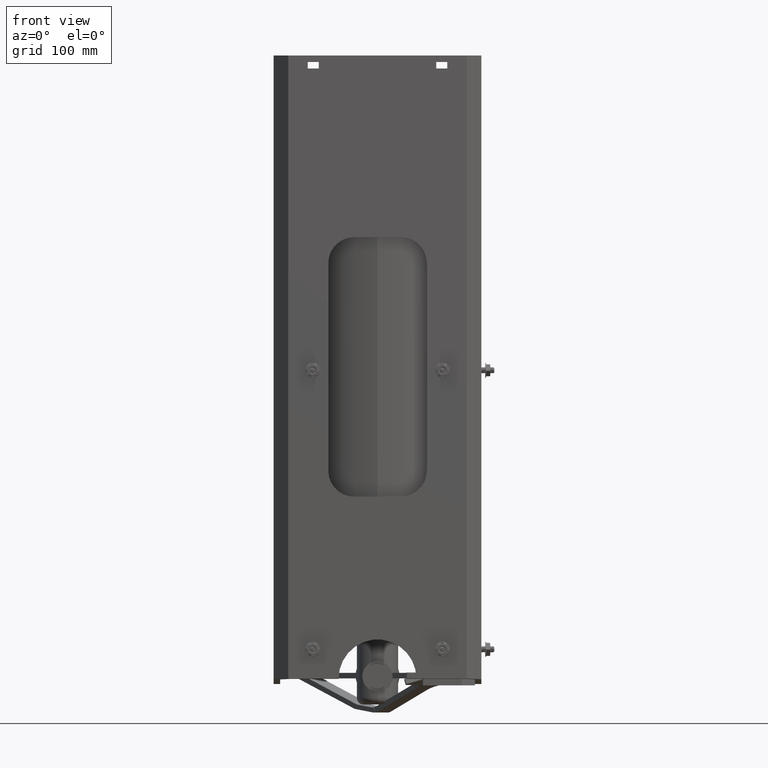
[diagram: clean part render]
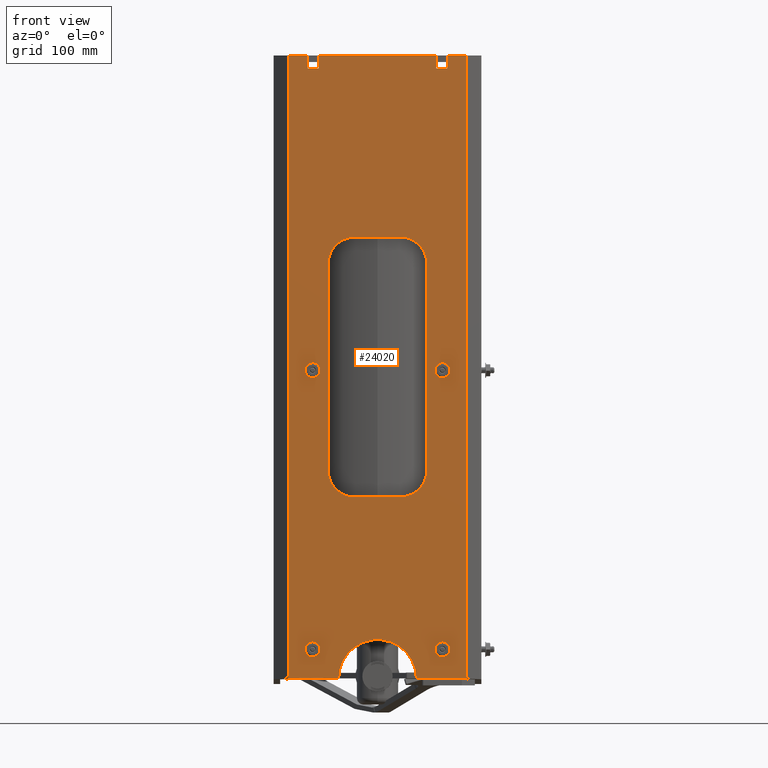
[diagram: same view with one face highlighted and labeled with its STEP entity id]
A machine part, front view. The second image highlights one B-rep face of the part: STEP entity #24020.
In plain terms, the highlighted planar face has unit normal (0, 1, 0).
Its self-contained STEP definition (entity closure, byte-faithful):
#192 = EDGE_CURVE ( 'NONE', #22848, #25808, #3116, .T. ) ;
#288 = VERTEX_POINT ( 'NONE', #25339 ) ;
#301 = CARTESIAN_POINT ( 'NONE',  ( -4.000000000000010700, -4.000000000000010700, 12.10500000000000000 ) ) ;
#709 = VERTEX_POINT ( 'NONE', #24168 ) ;
#737 = DIRECTION ( 'NONE',  ( 0.0000000000000000000, 0.0000000000000000000, -1.000000000000000000 ) ) ;
#744 = CARTESIAN_POINT ( 'NONE',  ( -5.736880786694953000E-015, -4.000000000000008900, -11.89500000000000000 ) ) ;
#758 = ORIENTED_EDGE ( 'NONE', *, *, #30178, .F. ) ;
#777 = CARTESIAN_POINT ( 'NONE',  ( -2.500000000000004900, -4.000000000000008900, -10.77000000000000100 ) ) ;
#781 = ORIENTED_EDGE ( 'NONE', *, *, #2026, .F. ) ;
#1023 = DIRECTION ( 'NONE',  ( -4.440892098500599000E-016, -1.000000000000000000, 0.0000000000000000000 ) ) ;
#1154 = VERTEX_POINT ( 'NONE', #4987 ) ;
#1570 = ORIENTED_EDGE ( 'NONE', *, *, #27045, .F. ) ;
#1656 = VERTEX_POINT ( 'NONE', #21421 ) ;
#1784 = CARTESIAN_POINT ( 'NONE',  ( -0.8950000000000045700, -4.000000000000008900, -4.894999999999997800 ) ) ;
#1910 = CIRCLE ( 'NONE', #12161, 1.000000000000000200 ) ;
#1981 = CIRCLE ( 'NONE', #8690, 0.1329999999999999200 ) ;
#2026 = EDGE_CURVE ( 'NONE', #4314, #16028, #1910, .T. ) ;
#2082 = CARTESIAN_POINT ( 'NONE',  ( -3.437500000000008400, -4.000000000000010700, 12.10500000000000000 ) ) ;
#2086 = ORIENTED_EDGE ( 'NONE', *, *, #17422, .F. ) ;
#2115 = LINE ( 'NONE', #18387, #14041 ) ;
#2358 = DIRECTION ( 'NONE',  ( -4.440892098500599000E-016, -1.000000000000000000, 0.0000000000000000000 ) ) ;
#2472 = VECTOR ( 'NONE', #14699, 39.37007874015748100 ) ;
#2574 = CARTESIAN_POINT ( 'NONE',  ( -0.8950000000000050100, -4.000000000000008900, -4.894999999999997800 ) ) ;
#2758 = DIRECTION ( 'NONE',  ( 5.463695987328539300E-016, 2.426368433873675200E-031, 1.000000000000000000 ) ) ;
#2782 = EDGE_LOOP ( 'NONE', ( #30515, #29788, #21597, #18230, #16774, #781, #28867, #2086 ) ) ;
#3009 = FACE_BOUND ( 'NONE', #2782, .T. ) ;
#3116 = CIRCLE ( 'NONE', #28569, 0.1329999999999997300 ) ;
#3169 = DIRECTION ( 'NONE',  ( 0.0000000000000000000, 0.0000000000000000000, -1.000000000000000000 ) ) ;
#3196 = DIRECTION ( 'NONE',  ( 0.0000000000000000000, 0.0000000000000000000, -1.000000000000000000 ) ) ;
#3221 = CARTESIAN_POINT ( 'NONE',  ( 2.687500000000002200, -4.000000000000008900, 12.10500000000000000 ) ) ;
#3505 = CIRCLE ( 'NONE', #16261, 0.1329999999999997000 ) ;
#3661 = VERTEX_POINT ( 'NONE', #8545 ) ;
#3705 = DIRECTION ( 'NONE',  ( -4.440892098500599000E-016, -1.000000000000000000, 0.0000000000000000000 ) ) ;
#3751 = FACE_BOUND ( 'NONE', #12607, .T. ) ;
#3764 = PLANE ( 'NONE',  #28555 ) ;
#3995 = DIRECTION ( 'NONE',  ( 1.000000000000000000, 4.440892098500596600E-016, 0.0000000000000000000 ) ) ;
#4235 = VERTEX_POINT ( 'NONE', #8524 ) ;
#4260 = DIRECTION ( 'NONE',  ( 1.000000000000000000, 4.440892098500596600E-016, 0.0000000000000000000 ) ) ;
#4314 = VERTEX_POINT ( 'NONE', #28171 ) ;
#4356 = VERTEX_POINT ( 'NONE', #4470 ) ;
#4414 = AXIS2_PLACEMENT_3D ( 'NONE', #777, #17441, #3196 ) ;
#4470 = CARTESIAN_POINT ( 'NONE',  ( 1.499999999999996700, -4.000000000000006200, -11.89500000000000000 ) ) ;
#4519 = ORIENTED_EDGE ( 'NONE', *, *, #20016, .F. ) ;
#4562 = DIRECTION ( 'NONE',  ( 0.0000000000000000000, 0.0000000000000000000, -1.000000000000000000 ) ) ;
#4665 = DIRECTION ( 'NONE',  ( -4.440892098500599000E-016, -1.000000000000000000, 0.0000000000000000000 ) ) ;
#4753 = CARTESIAN_POINT ( 'NONE',  ( 2.500000000000004000, -4.000000000000008900, -0.02000000000000033300 ) ) ;
#4766 = VERTEX_POINT ( 'NONE', #3221 ) ;
#4776 = ORIENTED_EDGE ( 'NONE', *, *, #18943, .F. ) ;
#4782 = CIRCLE ( 'NONE', #29787, 0.1329999999999997000 ) ;
#4859 = EDGE_CURVE ( 'NONE', #16373, #11336, #29372, .T. ) ;
#4977 = ORIENTED_EDGE ( 'NONE', *, *, #21016, .F. ) ;
#4987 = CARTESIAN_POINT ( 'NONE',  ( -2.500000000000004900, -4.000000000000008900, -10.90300000000000000 ) ) ;
#5109 = CARTESIAN_POINT ( 'NONE',  ( -2.263500000000007200, -4.000000000000008900, 12.10500000000000000 ) ) ;
#5137 = VERTEX_POINT ( 'NONE', #1784 ) ;
#5221 = CARTESIAN_POINT ( 'NONE',  ( -2.500000000000004900, -4.000000000000008900, -0.02000000000000033300 ) ) ;
#5225 = FACE_BOUND ( 'NONE', #17134, .T. ) ;
#5873 = DIRECTION ( 'NONE',  ( 0.0000000000000000000, -0.0000000000000000000, 1.000000000000000000 ) ) ;
#5876 = VECTOR ( 'NONE', #13546, 39.37007874015748100 ) ;
#5883 = CARTESIAN_POINT ( 'NONE',  ( 0.8949999999999994600, -4.000000000000008900, 5.105000000000001300 ) ) ;
#5978 = LINE ( 'NONE', #11135, #17924 ) ;
#6044 = ORIENTED_EDGE ( 'NONE', *, *, #19617, .T. ) ;
#6497 = LINE ( 'NONE', #27972, #19209 ) ;
#6584 = AXIS2_PLACEMENT_3D ( 'NONE', #8979, #25692, #11363 ) ;
#6774 = EDGE_CURVE ( 'NONE', #288, #3661, #25176, .T. ) ;
#7264 = CARTESIAN_POINT ( 'NONE',  ( 1.895000000000002700, -4.000000000000008900, -3.894999999999990700 ) ) ;
#7361 = VERTEX_POINT ( 'NONE', #23248 ) ;
#7446 = VERTEX_POINT ( 'NONE', #2082 ) ;
#7629 = DIRECTION ( 'NONE',  ( 0.0000000000000000000, 0.0000000000000000000, -1.000000000000000000 ) ) ;
#7939 = ORIENTED_EDGE ( 'NONE', *, *, #21286, .F. ) ;
#7983 = EDGE_CURVE ( 'NONE', #25808, #22848, #14562, .T. ) ;
#8124 = DIRECTION ( 'NONE',  ( -4.440892098500599000E-016, -1.000000000000000000, 0.0000000000000000000 ) ) ;
#8175 = CARTESIAN_POINT ( 'NONE',  ( 2.687500000000002200, -4.000000000000008900, 12.10500000000000000 ) ) ;
#8189 = VECTOR ( 'NONE', #19540, 39.37007874015748100 ) ;
#8418 = VECTOR ( 'NONE', #3995, 39.37007874015748100 ) ;
#8516 = EDGE_CURVE ( 'NONE', #7446, #11460, #14526, .T. ) ;
#8524 = CARTESIAN_POINT ( 'NONE',  ( 3.437499999999997300, -4.000000000000008000, -11.89500000000000000 ) ) ;
#8529 = DIRECTION ( 'NONE',  ( 0.0000000000000000000, -0.0000000000000000000, 1.000000000000000000 ) ) ;
#8545 = CARTESIAN_POINT ( 'NONE',  ( 2.263500000000002700, -4.000000000000008900, 11.60500000000000000 ) ) ;
#8690 = AXIS2_PLACEMENT_3D ( 'NONE', #15290, #1023, #17698 ) ;
#8779 = CIRCLE ( 'NONE', #24077, 0.1329999999999999200 ) ;
#8784 = DIRECTION ( 'NONE',  ( 1.000000000000000000, 4.440892098500596600E-016, 0.0000000000000000000 ) ) ;
#8858 = DIRECTION ( 'NONE',  ( 0.0000000000000000000, -0.0000000000000000000, 1.000000000000000000 ) ) ;
#8979 = CARTESIAN_POINT ( 'NONE',  ( -0.8950000000000050100, -4.000000000000008900, -3.894999999999997800 ) ) ;
#9048 = DIRECTION ( 'NONE',  ( -4.440892098500599000E-016, -1.000000000000000000, 0.0000000000000000000 ) ) ;
#9121 = AXIS2_PLACEMENT_3D ( 'NONE', #23341, #9048, #25754 ) ;
#9337 = FACE_BOUND ( 'NONE', #14530, .T. ) ;
#9503 = LINE ( 'NONE', #30077, #15083 ) ;
#9572 = CIRCLE ( 'NONE', #4414, 0.1329999999999999200 ) ;
#9781 = ORIENTED_EDGE ( 'NONE', *, *, #27375, .F. ) ;
#9848 = CARTESIAN_POINT ( 'NONE',  ( -1.895000000000009100, -4.000000000000008900, -3.894999999999997800 ) ) ;
#10093 = ORIENTED_EDGE ( 'NONE', *, *, #27393, .T. ) ;
#10193 = VERTEX_POINT ( 'NONE', #17570 ) ;
#10201 = EDGE_CURVE ( 'NONE', #26441, #13528, #12230, .T. ) ;
#10236 = EDGE_CURVE ( 'NONE', #16551, #4766, #17064, .T. ) ;
#10565 = VECTOR ( 'NONE', #2758, 39.37007874015748100 ) ;
#10594 = VECTOR ( 'NONE', #16468, 39.37007874015748100 ) ;
#10645 = AXIS2_PLACEMENT_3D ( 'NONE', #17975, #3705, #20364 ) ;
#10934 = CIRCLE ( 'NONE', #25493, 0.1329999999999999200 ) ;
#11135 = CARTESIAN_POINT ( 'NONE',  ( -2.687500000000006700, -4.000000000000008900, 11.60500000000000000 ) ) ;
#11336 = VERTEX_POINT ( 'NONE', #21064 ) ;
#11363 = DIRECTION ( 'NONE',  ( 0.0000000000000000000, 0.0000000000000000000, 1.000000000000000000 ) ) ;
#11417 = CARTESIAN_POINT ( 'NONE',  ( -4.000000000000010700, -4.000000000000010700, 12.10500000000000000 ) ) ;
#11441 = CARTESIAN_POINT ( 'NONE',  ( 2.263500000000002300, -4.000000000000008900, 12.10500000000000000 ) ) ;
#11460 = VERTEX_POINT ( 'NONE', #28608 ) ;
#11471 = LINE ( 'NONE', #25471, #5876 ) ;
#11473 = VECTOR ( 'NONE', #12863, 39.37007874015748100 ) ;
#11729 = VERTEX_POINT ( 'NONE', #12490 ) ;
#11779 = CARTESIAN_POINT ( 'NONE',  ( -4.000000000000010700, -4.000000000000011500, -11.89500000000000000 ) ) ;
#12070 = EDGE_CURVE ( 'NONE', #10193, #16373, #25620, .T. ) ;
#12097 = EDGE_CURVE ( 'NONE', #7446, #7361, #18504, .T. ) ;
#12139 = DIRECTION ( 'NONE',  ( 1.000000000000000000, 4.440892098500596600E-016, 0.0000000000000000000 ) ) ;
#12161 = AXIS2_PLACEMENT_3D ( 'NONE', #29185, #12456, #26770 ) ;
#12230 = LINE ( 'NONE', #24807, #11473 ) ;
#12233 = CARTESIAN_POINT ( 'NONE',  ( 2.500000000000004400, -4.000000000000008900, 0.1129999999999993900 ) ) ;
#12456 = DIRECTION ( 'NONE',  ( -4.440892098500599000E-016, -1.000000000000000000, 0.0000000000000000000 ) ) ;
#12490 = CARTESIAN_POINT ( 'NONE',  ( -2.500000000000004400, -4.000000000000008900, -10.63700000000000000 ) ) ;
#12589 = DIRECTION ( 'NONE',  ( -4.440892098500599000E-016, -1.000000000000000000, 0.0000000000000000000 ) ) ;
#12607 = EDGE_LOOP ( 'NONE', ( #4776, #1570 ) ) ;
#12759 = ORIENTED_EDGE ( 'NONE', *, *, #7983, .F. ) ;
#12863 = DIRECTION ( 'NONE',  ( -2.048885995248202100E-016, -9.098881627026273100E-032, -1.000000000000000000 ) ) ;
#13232 = CARTESIAN_POINT ( 'NONE',  ( 2.500000000000004000, -4.000000000000008900, -0.1530000000000000500 ) ) ;
#13299 = VERTEX_POINT ( 'NONE', #27562 ) ;
#13486 = CARTESIAN_POINT ( 'NONE',  ( 2.687500000000002200, -4.000000000000008900, 11.60500000000000000 ) ) ;
#13528 = VERTEX_POINT ( 'NONE', #9848 ) ;
#13546 = DIRECTION ( 'NONE',  ( 0.0000000000000000000, 0.0000000000000000000, -1.000000000000000000 ) ) ;
#14041 = VECTOR ( 'NONE', #8784, 39.37007874015748100 ) ;
#14042 = ORIENTED_EDGE ( 'NONE', *, *, #25925, .F. ) ;
#14162 = VERTEX_POINT ( 'NONE', #18485 ) ;
#14526 = LINE ( 'NONE', #29051, #8189 ) ;
#14530 = EDGE_LOOP ( 'NONE', ( #19423, #26287 ) ) ;
#14562 = CIRCLE ( 'NONE', #10645, 0.1329999999999997300 ) ;
#14658 = CIRCLE ( 'NONE', #27682, 1.500000000000000900 ) ;
#14699 = DIRECTION ( 'NONE',  ( 0.0000000000000000000, -0.0000000000000000000, 1.000000000000000000 ) ) ;
#14762 = AXIS2_PLACEMENT_3D ( 'NONE', #22433, #8124, #24862 ) ;
#15023 = DIRECTION ( 'NONE',  ( -4.440892098500599000E-016, -1.000000000000000000, 0.0000000000000000000 ) ) ;
#15083 = VECTOR ( 'NONE', #27663, 39.37007874015748100 ) ;
#15290 = CARTESIAN_POINT ( 'NONE',  ( 2.500000000000003600, -4.000000000000008900, -10.77000000000000100 ) ) ;
#15458 = EDGE_CURVE ( 'NONE', #23216, #14162, #5978, .T. ) ;
#15504 = LINE ( 'NONE', #30199, #8418 ) ;
#15648 = FACE_BOUND ( 'NONE', #28927, .T. ) ;
#15787 = ORIENTED_EDGE ( 'NONE', *, *, #192, .F. ) ;
#16028 = VERTEX_POINT ( 'NONE', #7264 ) ;
#16196 = LINE ( 'NONE', #11779, #10594 ) ;
#16261 = AXIS2_PLACEMENT_3D ( 'NONE', #29349, #15023, #737 ) ;
#16373 = VERTEX_POINT ( 'NONE', #5883 ) ;
#16468 = DIRECTION ( 'NONE',  ( 1.000000000000000000, 4.440892098500596600E-016, 0.0000000000000000000 ) ) ;
#16551 = VERTEX_POINT ( 'NONE', #13486 ) ;
#16611 = CARTESIAN_POINT ( 'NONE',  ( -2.500000000000004900, -4.000000000000008900, -10.77000000000000100 ) ) ;
#16635 = VECTOR ( 'NONE', #24905, 39.37007874015748100 ) ;
#16774 = ORIENTED_EDGE ( 'NONE', *, *, #27743, .F. ) ;
#17064 = LINE ( 'NONE', #8175, #29804 ) ;
#17087 = CARTESIAN_POINT ( 'NONE',  ( 1.895000000000002200, -4.000000000000008900, 4.105000000000000400 ) ) ;
#17106 = ORIENTED_EDGE ( 'NONE', *, *, #8516, .T. ) ;
#17134 = EDGE_LOOP ( 'NONE', ( #4519, #7939 ) ) ;
#17345 = ORIENTED_EDGE ( 'NONE', *, *, #19551, .F. ) ;
#17414 = DIRECTION ( 'NONE',  ( -4.440892098500599000E-016, -1.000000000000000000, 0.0000000000000000000 ) ) ;
#17422 = EDGE_CURVE ( 'NONE', #13528, #5137, #29397, .T. ) ;
#17441 = DIRECTION ( 'NONE',  ( -4.440892098500599000E-016, -1.000000000000000000, 0.0000000000000000000 ) ) ;
#17522 = ORIENTED_EDGE ( 'NONE', *, *, #19765, .T. ) ;
#17570 = CARTESIAN_POINT ( 'NONE',  ( 1.895000000000002200, -4.000000000000008900, 4.105000000000000400 ) ) ;
#17633 = VECTOR ( 'NONE', #30808, 39.37007874015748100 ) ;
#17659 = LINE ( 'NONE', #5109, #10565 ) ;
#17698 = DIRECTION ( 'NONE',  ( 0.0000000000000000000, 0.0000000000000000000, -1.000000000000000000 ) ) ;
#17776 = ORIENTED_EDGE ( 'NONE', *, *, #20372, .F. ) ;
#17777 = CARTESIAN_POINT ( 'NONE',  ( -0.8950000000000034600, -4.000000000000008900, 5.105000000000000400 ) ) ;
#17924 = VECTOR ( 'NONE', #22957, 39.37007874015748100 ) ;
#17975 = CARTESIAN_POINT ( 'NONE',  ( 2.500000000000004000, -4.000000000000008900, -0.02000000000000033300 ) ) ;
#18230 = ORIENTED_EDGE ( 'NONE', *, *, #12070, .F. ) ;
#18387 = CARTESIAN_POINT ( 'NONE',  ( -4.000000000000010700, -4.000000000000011500, -11.89500000000000000 ) ) ;
#18485 = CARTESIAN_POINT ( 'NONE',  ( -2.263500000000007200, -4.000000000000008900, 11.60500000000000000 ) ) ;
#18504 = LINE ( 'NONE', #11417, #27115 ) ;
#18825 = VECTOR ( 'NONE', #25783, 39.37007874015748100 ) ;
#18943 = EDGE_CURVE ( 'NONE', #1154, #11729, #8779, .T. ) ;
#19037 = DIRECTION ( 'NONE',  ( 0.0000000000000000000, 0.0000000000000000000, -1.000000000000000000 ) ) ;
#19209 = VECTOR ( 'NONE', #8858, 39.37007874015748100 ) ;
#19423 = ORIENTED_EDGE ( 'NONE', *, *, #25568, .F. ) ;
#19540 = DIRECTION ( 'NONE',  ( 0.0000000000000000000, 0.0000000000000000000, -1.000000000000000000 ) ) ;
#19551 = EDGE_CURVE ( 'NONE', #4766, #30057, #9503, .T. ) ;
#19617 = EDGE_CURVE ( 'NONE', #4235, #30057, #6497, .T. ) ;
#19688 = ORIENTED_EDGE ( 'NONE', *, *, #12097, .F. ) ;
#19765 = EDGE_CURVE ( 'NONE', #11460, #709, #16196, .T. ) ;
#20016 = EDGE_CURVE ( 'NONE', #13299, #27927, #10934, .T. ) ;
#20364 = DIRECTION ( 'NONE',  ( 0.0000000000000000000, 0.0000000000000000000, -1.000000000000000000 ) ) ;
#20372 = EDGE_CURVE ( 'NONE', #14162, #24193, #17659, .T. ) ;
#20423 = CARTESIAN_POINT ( 'NONE',  ( -4.000000000000010700, -4.000000000000010700, 12.10500000000000000 ) ) ;
#20462 = EDGE_CURVE ( 'NONE', #29052, #1656, #3505, .T. ) ;
#20819 = CIRCLE ( 'NONE', #14762, 1.000000000000000200 ) ;
#21016 = EDGE_CURVE ( 'NONE', #24193, #288, #24021, .T. ) ;
#21058 = CARTESIAN_POINT ( 'NONE',  ( -2.263500000000007200, -4.000000000000008900, 12.10500000000000000 ) ) ;
#21064 = CARTESIAN_POINT ( 'NONE',  ( -0.8950000000000034600, -4.000000000000008900, 5.105000000000000400 ) ) ;
#21286 = EDGE_CURVE ( 'NONE', #27927, #13299, #1981, .T. ) ;
#21421 = CARTESIAN_POINT ( 'NONE',  ( -2.500000000000004900, -4.000000000000008900, -0.1530000000000000500 ) ) ;
#21597 = ORIENTED_EDGE ( 'NONE', *, *, #4859, .F. ) ;
#21910 = DIRECTION ( 'NONE',  ( -4.440892098500599000E-016, -1.000000000000000000, 0.0000000000000000000 ) ) ;
#22433 = CARTESIAN_POINT ( 'NONE',  ( -0.8950000000000034600, -4.000000000000008900, 4.105000000000000400 ) ) ;
#22834 = DIRECTION ( 'NONE',  ( 4.440892098500599000E-016, 1.000000000000000000, 0.0000000000000000000 ) ) ;
#22848 = VERTEX_POINT ( 'NONE', #12233 ) ;
#22957 = DIRECTION ( 'NONE',  ( 1.000000000000000000, 4.440892098500596600E-016, 0.0000000000000000000 ) ) ;
#23004 = CARTESIAN_POINT ( 'NONE',  ( -2.500000000000004400, -4.000000000000008900, 0.1129999999999993800 ) ) ;
#23216 = VERTEX_POINT ( 'NONE', #25510 ) ;
#23248 = CARTESIAN_POINT ( 'NONE',  ( -2.687500000000006700, -4.000000000000008900, 12.10500000000000000 ) ) ;
#23341 = CARTESIAN_POINT ( 'NONE',  ( 0.8949999999999993500, -4.000000000000008900, 4.105000000000000400 ) ) ;
#23592 = ORIENTED_EDGE ( 'NONE', *, *, #10236, .F. ) ;
#24020 = ADVANCED_FACE ( 'NONE', ( #5225, #3751, #15648, #9337, #3009, #27641 ), #3764, .F. ) ;
#24021 = LINE ( 'NONE', #301, #17633 ) ;
#24077 = AXIS2_PLACEMENT_3D ( 'NONE', #16611, #2358, #19037 ) ;
#24168 = CARTESIAN_POINT ( 'NONE',  ( -1.500000000000008700, -4.000000000000010700, -11.89500000000000000 ) ) ;
#24193 = VERTEX_POINT ( 'NONE', #21058 ) ;
#24807 = CARTESIAN_POINT ( 'NONE',  ( -1.895000000000007600, -4.000000000000008900, 4.105000000000000400 ) ) ;
#24862 = DIRECTION ( 'NONE',  ( 0.0000000000000000000, 0.0000000000000000000, 1.000000000000000000 ) ) ;
#24905 = DIRECTION ( 'NONE',  ( -1.000000000000000000, -4.440892098500596600E-016, -6.104688253998340000E-016 ) ) ;
#25176 = LINE ( 'NONE', #11441, #18825 ) ;
#25227 = EDGE_CURVE ( 'NONE', #5137, #4314, #29833, .T. ) ;
#25247 = CARTESIAN_POINT ( 'NONE',  ( 2.500000000000004400, -4.000000000000008900, -10.63700000000000000 ) ) ;
#25339 = CARTESIAN_POINT ( 'NONE',  ( 2.263500000000002300, -4.000000000000008900, 12.10500000000000000 ) ) ;
#25471 = CARTESIAN_POINT ( 'NONE',  ( -2.687500000000006700, -4.000000000000008900, 12.10500000000000000 ) ) ;
#25493 = AXIS2_PLACEMENT_3D ( 'NONE', #26928, #12589, #29322 ) ;
#25510 = CARTESIAN_POINT ( 'NONE',  ( -2.687500000000006700, -4.000000000000008900, 11.60500000000000000 ) ) ;
#25568 = EDGE_CURVE ( 'NONE', #1656, #29052, #4782, .T. ) ;
#25620 = CIRCLE ( 'NONE', #9121, 1.000000000000000200 ) ;
#25692 = DIRECTION ( 'NONE',  ( -4.440892098500599000E-016, -1.000000000000000000, 0.0000000000000000000 ) ) ;
#25754 = DIRECTION ( 'NONE',  ( 0.0000000000000000000, 0.0000000000000000000, -1.000000000000000000 ) ) ;
#25771 = EDGE_CURVE ( 'NONE', #11336, #26441, #20819, .T. ) ;
#25783 = DIRECTION ( 'NONE',  ( 5.463695987328539300E-016, 2.426368433873675200E-031, -1.000000000000000000 ) ) ;
#25808 = VERTEX_POINT ( 'NONE', #13232 ) ;
#25925 = EDGE_CURVE ( 'NONE', #7361, #23216, #11471, .T. ) ;
#26287 = ORIENTED_EDGE ( 'NONE', *, *, #20462, .F. ) ;
#26441 = VERTEX_POINT ( 'NONE', #29633 ) ;
#26535 = CARTESIAN_POINT ( 'NONE',  ( 3.437499999999997300, -4.000000000000006200, 12.10500000000000000 ) ) ;
#26770 = DIRECTION ( 'NONE',  ( 0.0000000000000000000, 0.0000000000000000000, -1.000000000000000000 ) ) ;
#26928 = CARTESIAN_POINT ( 'NONE',  ( 2.500000000000003600, -4.000000000000008900, -10.77000000000000100 ) ) ;
#27045 = EDGE_CURVE ( 'NONE', #11729, #1154, #9572, .T. ) ;
#27110 = LINE ( 'NONE', #17087, #2472 ) ;
#27115 = VECTOR ( 'NONE', #4260, 39.37007874015748100 ) ;
#27375 = EDGE_CURVE ( 'NONE', #3661, #16551, #15504, .T. ) ;
#27393 = EDGE_CURVE ( 'NONE', #4356, #4235, #2115, .T. ) ;
#27562 = CARTESIAN_POINT ( 'NONE',  ( 2.500000000000003600, -4.000000000000008900, -10.90300000000000000 ) ) ;
#27641 = FACE_OUTER_BOUND ( 'NONE', #29078, .T. ) ;
#27663 = DIRECTION ( 'NONE',  ( 1.000000000000000000, 4.440892098500596600E-016, 0.0000000000000000000 ) ) ;
#27682 = AXIS2_PLACEMENT_3D ( 'NONE', #744, #17414, #3169 ) ;
#27743 = EDGE_CURVE ( 'NONE', #16028, #10193, #27110, .T. ) ;
#27927 = VERTEX_POINT ( 'NONE', #25247 ) ;
#27972 = CARTESIAN_POINT ( 'NONE',  ( 3.437499999999997800, -4.000000000000006200, 12.10500000000000000 ) ) ;
#28085 = ORIENTED_EDGE ( 'NONE', *, *, #6774, .F. ) ;
#28130 = ORIENTED_EDGE ( 'NONE', *, *, #15458, .F. ) ;
#28171 = CARTESIAN_POINT ( 'NONE',  ( 0.8949999999999924700, -4.000000000000008900, -4.894999999999997800 ) ) ;
#28555 = AXIS2_PLACEMENT_3D ( 'NONE', #20423, #22834, #8529 ) ;
#28569 = AXIS2_PLACEMENT_3D ( 'NONE', #4753, #4665, #4562 ) ;
#28608 = CARTESIAN_POINT ( 'NONE',  ( -3.437500000000007100, -4.000000000000011500, -11.89500000000000000 ) ) ;
#28867 = ORIENTED_EDGE ( 'NONE', *, *, #25227, .F. ) ;
#28927 = EDGE_LOOP ( 'NONE', ( #12759, #15787 ) ) ;
#29051 = CARTESIAN_POINT ( 'NONE',  ( -3.437500000000008400, -4.000000000000010700, 12.10500000000000000 ) ) ;
#29052 = VERTEX_POINT ( 'NONE', #23004 ) ;
#29078 = EDGE_LOOP ( 'NONE', ( #9781, #28085, #4977, #17776, #28130, #14042, #19688, #17106, #17522, #758, #10093, #6044, #17345, #23592 ) ) ;
#29089 = VECTOR ( 'NONE', #12139, 39.37007874015748100 ) ;
#29185 = CARTESIAN_POINT ( 'NONE',  ( 0.8949999999999995700, -4.000000000000008900, -3.894999999999997800 ) ) ;
#29322 = DIRECTION ( 'NONE',  ( 0.0000000000000000000, 0.0000000000000000000, -1.000000000000000000 ) ) ;
#29349 = CARTESIAN_POINT ( 'NONE',  ( -2.500000000000004900, -4.000000000000008900, -0.02000000000000033300 ) ) ;
#29372 = LINE ( 'NONE', #17777, #16635 ) ;
#29397 = CIRCLE ( 'NONE', #6584, 1.000000000000000200 ) ;
#29633 = CARTESIAN_POINT ( 'NONE',  ( -1.895000000000007600, -4.000000000000008900, 4.105000000000000400 ) ) ;
#29787 = AXIS2_PLACEMENT_3D ( 'NONE', #5221, #21910, #7629 ) ;
#29788 = ORIENTED_EDGE ( 'NONE', *, *, #25771, .F. ) ;
#29804 = VECTOR ( 'NONE', #5873, 39.37007874015748100 ) ;
#29833 = LINE ( 'NONE', #2574, #29089 ) ;
#30057 = VERTEX_POINT ( 'NONE', #26535 ) ;
#30077 = CARTESIAN_POINT ( 'NONE',  ( -4.000000000000010700, -4.000000000000010700, 12.10500000000000000 ) ) ;
#30178 = EDGE_CURVE ( 'NONE', #4356, #709, #14658, .T. ) ;
#30199 = CARTESIAN_POINT ( 'NONE',  ( 2.263500000000002700, -4.000000000000008900, 11.60500000000000000 ) ) ;
#30515 = ORIENTED_EDGE ( 'NONE', *, *, #10201, .F. ) ;
#30808 = DIRECTION ( 'NONE',  ( 1.000000000000000000, 4.440892098500596600E-016, 0.0000000000000000000 ) ) ;